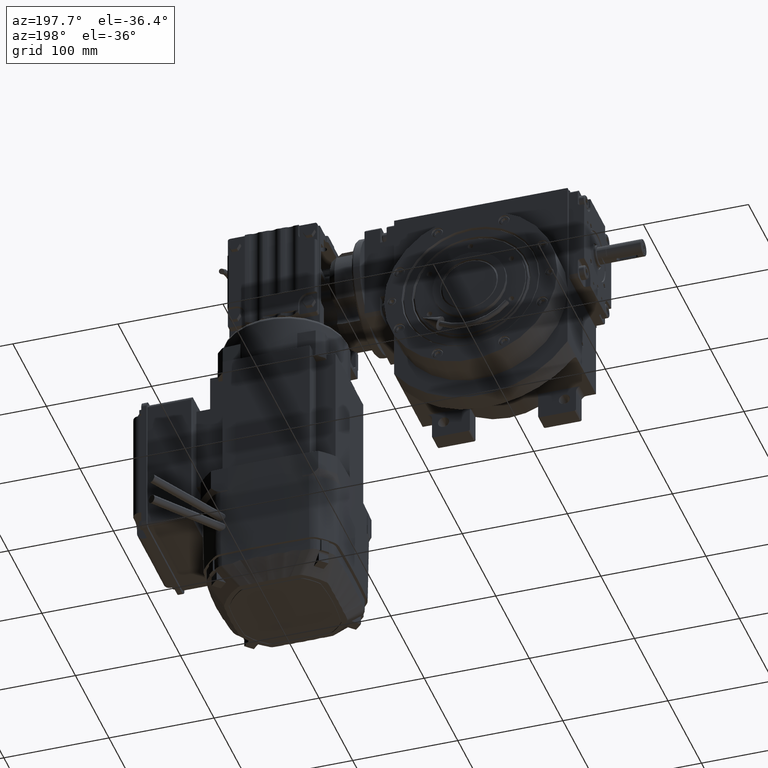
[diagram: clean part render]
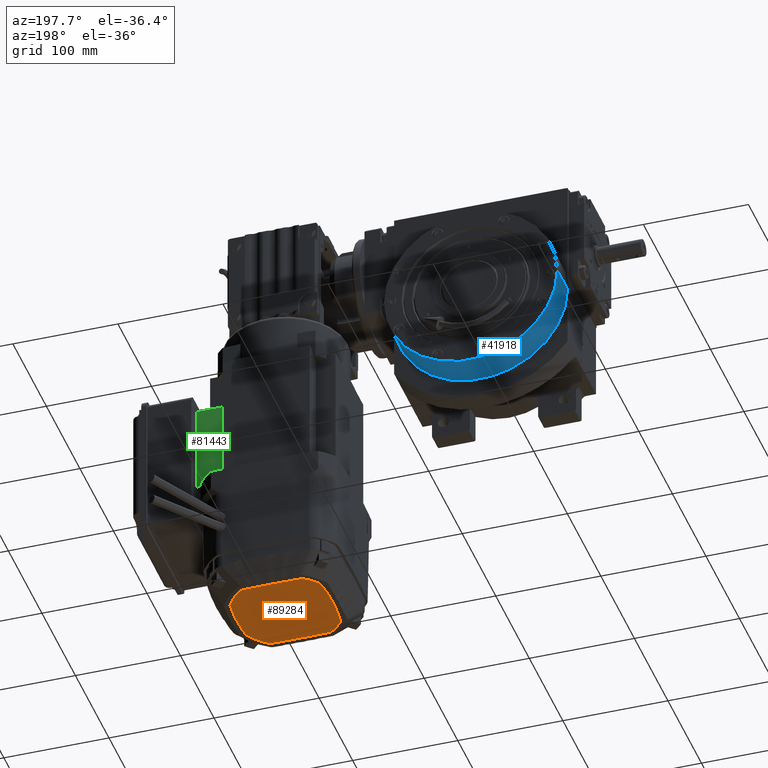
[diagram: same view with three faces highlighted in distinct colors, each labeled with its STEP entity id]
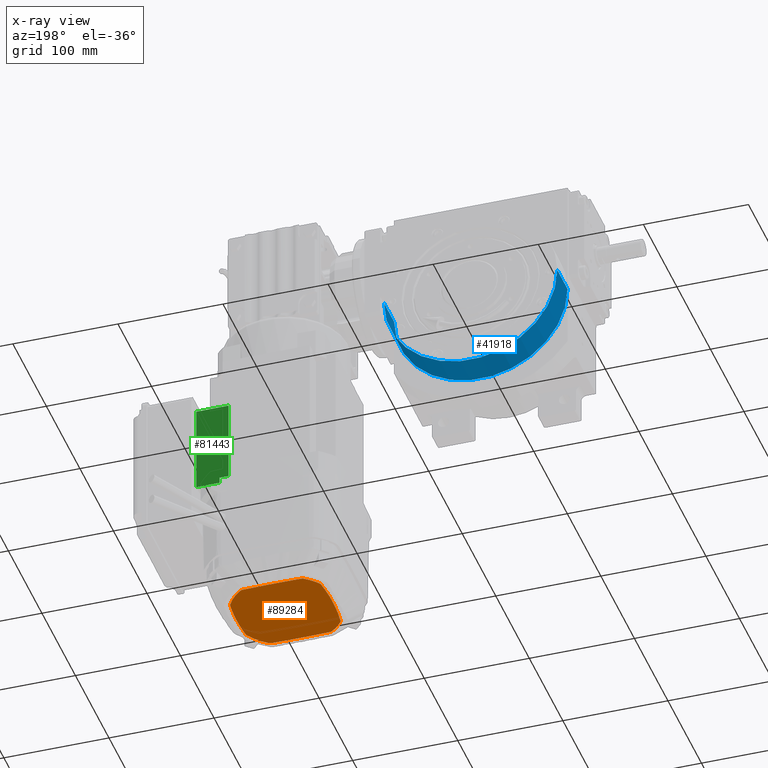
[diagram: x-ray of the same camera — body ghosted, the three highlighted faces saturated]
A machine part, auxiliary view with three faces highlighted in distinct colors.
The next image is the same camera in x-ray (body ghosted, the three faces saturated) — at least one of them is partly hidden behind the body in this view.
Their STEP definitions:

[orange] entity #89284 — the highlighted planar face has unit normal (0, 0, -1).
#125 = VERTEX_POINT ( 'NONE', #70533 ) ;
#200 = ORIENTED_EDGE ( 'NONE', *, *, #59385, .F. ) ;
#331 = DIRECTION ( 'NONE',  ( -1.000000000000000000, 1.110199554968789938E-42, 4.218847493575485202E-15 ) ) ;
#469 = AXIS2_PLACEMENT_3D ( 'NONE', #94414, #65297, #24519 ) ;
#476 = DIRECTION ( 'NONE',  ( 0.000000000000000000, 1.000000000000000000, 1.011922027653558986E-14 ) ) ;
#2613 = CARTESIAN_POINT ( 'NONE',  ( 350.8999999999999773, -30.34940460747401048, 64.97801376877232826 ) ) ;
#4866 = CIRCLE ( 'NONE', #60321, 51.79999999999769500 ) ;
#5056 = AXIS2_PLACEMENT_3D ( 'NONE', #39104, #331, #85072 ) ;
#5326 = AXIS2_PLACEMENT_3D ( 'NONE', #85184, #54518, #69833 ) ;
#6404 = VERTEX_POINT ( 'NONE', #35077 ) ;
#6699 = CARTESIAN_POINT ( 'NONE',  ( 350.8999999999999773, 165.5000000000000000, 23.00000000000035172 ) ) ;
#6872 = CIRCLE ( 'NONE', #75328, 51.79999999999800053 ) ;
#6955 = CARTESIAN_POINT ( 'NONE',  ( 350.9000000000041837, 1.179611963664228824E-11, -980.9480531501500309 ) ) ;
#7470 = VERTEX_POINT ( 'NONE', #63064 ) ;
#8265 = CIRCLE ( 'NONE', #13149, 4.799999999997698552 ) ;
#8286 = AXIS2_PLACEMENT_3D ( 'NONE', #79043, #70360, #476 ) ;
#8869 = DIRECTION ( 'NONE',  ( 0.000000000000000000, 1.000000000000000000, 1.011922027653622726E-14 ) ) ;
#10244 = CIRCLE ( 'NONE', #68910, 209.7999999999999829 ) ;
#10922 = CARTESIAN_POINT ( 'NONE',  ( 350.8999999999999773, 1.249000902703301108E-12, 22.99999999999855049 ) ) ;
#12162 = AXIS2_PLACEMENT_3D ( 'NONE', #86624, #80969, #71265 ) ;
#12576 = VERTEX_POINT ( 'NONE', #95806 ) ;
#13149 = AXIS2_PLACEMENT_3D ( 'NONE', #46657, #40497, #8869 ) ;
#13563 = VERTEX_POINT ( 'NONE', #33595 ) ;
#13666 = DIRECTION ( 'NONE',  ( 0.000000000000000000, 1.000000000000000000, 1.011922027653576657E-14 ) ) ;
#14004 = DIRECTION ( 'NONE',  ( 0.000000000000000000, 1.000000000000000000, 1.044852750009196605E-14 ) ) ;
#14486 = DIRECTION ( 'NONE',  ( 0.000000000000000000, 1.000000000000000000, 1.046787378735289790E-14 ) ) ;
#15163 = ORIENTED_EDGE ( 'NONE', *, *, #73479, .F. ) ;
#16074 = DIRECTION ( 'NONE',  ( -1.000000000000000000, 1.139884579173429879E-42, 4.218847493575485202E-15 ) ) ;
#16660 = PLANE ( 'NONE',  #58377 ) ;
#16781 = ORIENTED_EDGE ( 'NONE', *, *, #27870, .F. ) ;
#16876 = CARTESIAN_POINT ( 'NONE',  ( 350.8999999999957708, -9.214851104388799286E-12, 1026.948053150149917 ) ) ;
#17106 = CIRCLE ( 'NONE', #82330, 51.79999999999999716 ) ;
#17628 = DIRECTION ( 'NONE',  ( -1.000000000000000000, 1.149172564369689967E-42, 4.218847493575485202E-15 ) ) ;
#18101 = AXIS2_PLACEMENT_3D ( 'NONE', #41364, #72477, #18388 ) ;
#18108 = DIRECTION ( 'NONE',  ( 0.000000000000000000, 1.000000000000000000, 1.011922027653137735E-14 ) ) ;
#18382 = ORIENTED_EDGE ( 'NONE', *, *, #28899, .F. ) ;
#18388 = DIRECTION ( 'NONE',  ( 0.000000000000000000, 1.000000000000000000, 1.046703450730366946E-14 ) ) ;
#19592 = DIRECTION ( 'NONE',  ( 0.000000000000000000, 1.000000000000000000, 1.044852750009271074E-14 ) ) ;
#19949 = VERTEX_POINT ( 'NONE', #88288 ) ;
#20832 = ORIENTED_EDGE ( 'NONE', *, *, #47952, .F. ) ;
#21373 = ORIENTED_EDGE ( 'NONE', *, *, #95322, .F. ) ;
#22155 = CIRCLE ( 'NONE', #74212, 1047.200000000000045 ) ;
#22398 = CIRCLE ( 'NONE', #46844, 1047.199999999999818 ) ;
#22627 = EDGE_CURVE ( 'NONE', #63536, #40346, #8265, .T. ) ;
#22831 = DIRECTION ( 'NONE',  ( -1.000000000000000000, 1.110199554968405843E-42, 4.218847493575485202E-15 ) ) ;
#22918 = DIRECTION ( 'NONE',  ( 0.000000000000000000, 1.000000000000000000, 1.044852750009242990E-14 ) ) ;
#23233 = CARTESIAN_POINT ( 'NONE',  ( 350.8999999999999773, -47.29999999999878924, 22.99999999999814548 ) ) ;
#24446 = CIRCLE ( 'NONE', #71689, 4.799999999999998934 ) ;
#24519 = DIRECTION ( 'NONE',  ( 0.000000000000000000, 1.000000000000000000, 1.011922027653945213E-14 ) ) ;
#25522 = AXIS2_PLACEMENT_3D ( 'NONE', #30486, #22831, #13666 ) ;
#27836 = ORIENTED_EDGE ( 'NONE', *, *, #76247, .F. ) ;
#27870 = EDGE_CURVE ( 'NONE', #43191, #71509, #24446, .T. ) ;
#28899 = EDGE_CURVE ( 'NONE', #55949, #70768, #29502, .T. ) ;
#28990 = CARTESIAN_POINT ( 'NONE',  ( 350.8999999999999773, 41.37390563733369930, -8.167931152275770046 ) ) ;
#29502 = CIRCLE ( 'NONE', #5056, 4.799999999996258815 ) ;
#29519 = EDGE_CURVE ( 'NONE', #40265, #95642, #47455, .T. ) ;
#30486 = CARTESIAN_POINT ( 'NONE',  ( 350.8999999999999773, 37.54003021148199792, -5.279783091834533870 ) ) ;
#31015 = VERTEX_POINT ( 'NONE', #28990 ) ;
#31027 = VERTEX_POINT ( 'NONE', #84098 ) ;
#31494 = DIRECTION ( 'NONE',  ( -4.218847493575594854E-15, -1.097139774554090094E-28, 1.000000000000000000 ) ) ;
#31526 = DIRECTION ( 'NONE',  ( 0.000000000000000000, 1.000000000000000000, 1.044852750009236837E-14 ) ) ;
#32186 = DIRECTION ( 'NONE',  ( 0.000000000000000000, 1.000000000000000000, 1.038978766360440565E-14 ) ) ;
#33280 = AXIS2_PLACEMENT_3D ( 'NONE', #10922, #65515, #19592 ) ;
#33595 = CARTESIAN_POINT ( 'NONE',  ( 350.8999999999999773, 44.29999999999928662, 22.99999999999904787 ) ) ;
#34473 = ORIENTED_EDGE ( 'NONE', *, *, #22627, .F. ) ;
#34753 = ORIENTED_EDGE ( 'NONE', *, *, #81001, .F. ) ;
#35077 = CARTESIAN_POINT ( 'NONE',  ( 350.8999999999999773, 42.29413823594391175, -5.941943866667362961 ) ) ;
#36260 = EDGE_CURVE ( 'NONE', #7470, #13563, #82228, .T. ) ;
#39104 = CARTESIAN_POINT ( 'NONE',  ( 350.8999999999999773, -27.53710456662889072, 61.08815921105082225 ) ) ;
#39686 = ORIENTED_EDGE ( 'NONE', *, *, #43488, .F. ) ;
#40098 = CARTESIAN_POINT ( 'NONE',  ( 350.8999999999999773, -165.5000000000000284, 22.99999999999684874 ) ) ;
#40265 = VERTEX_POINT ( 'NONE', #23233 ) ;
#40346 = VERTEX_POINT ( 'NONE', #56708 ) ;
#40497 = DIRECTION ( 'NONE',  ( -1.000000000000000000, 1.110199554968449812E-42, 4.218847493575485202E-15 ) ) ;
#41240 = CIRCLE ( 'NONE', #5326, 4.799999999997847766 ) ;
#41364 = CARTESIAN_POINT ( 'NONE',  ( 350.8999999999999773, 165.5000000000000000, 23.00000000000035172 ) ) ;
#41435 = CIRCLE ( 'NONE', #33280, 51.79999999999630234 ) ;
#41562 = DIRECTION ( 'NONE',  ( -1.000000000000000000, 1.149172564369689967E-42, 4.218847493575485202E-15 ) ) ;
#41809 = EDGE_CURVE ( 'NONE', #71509, #40265, #63216, .T. ) ;
#42069 = CARTESIAN_POINT ( 'NONE',  ( 350.8999999999999773, 1.332267629550187849E-12, 22.99999999999855049 ) ) ;
#43191 = VERTEX_POINT ( 'NONE', #63792 ) ;
#43226 = EDGE_CURVE ( 'NONE', #98139, #31027, #81999, .T. ) ;
#43488 = EDGE_CURVE ( 'NONE', #91134, #19949, #41240, .T. ) ;
#44818 = ORIENTED_EDGE ( 'NONE', *, *, #97084, .F. ) ;
#46657 = CARTESIAN_POINT ( 'NONE',  ( 350.8999999999999773, -27.53710456663138828, -15.08815921105485103 ) ) ;
#46844 = AXIS2_PLACEMENT_3D ( 'NONE', #6955, #16074, #85533 ) ;
#46973 = DIRECTION ( 'NONE',  ( 0.000000000000000000, 1.000000000000000000, 1.046703450730366946E-14 ) ) ;
#47455 = CIRCLE ( 'NONE', #18101, 212.7999999999999545 ) ;
#47952 = EDGE_CURVE ( 'NONE', #70768, #98139, #22398, .T. ) ;
#53121 = DIRECTION ( 'NONE',  ( -1.000000000000000000, 1.149172564369689967E-42, 4.218847493575485202E-15 ) ) ;
#54518 = DIRECTION ( 'NONE',  ( -1.000000000000000000, 1.110199554968417791E-42, 4.218847493575485202E-15 ) ) ;
#55498 = CARTESIAN_POINT ( 'NONE',  ( 350.8999999999999773, 1.554312234475219157E-12, 22.99999999999855049 ) ) ;
#55949 = VERTEX_POINT ( 'NONE', #2613 ) ;
#56590 = CARTESIAN_POINT ( 'NONE',  ( 350.8999999999999773, -27.66390627606848795, 65.88648405691581900 ) ) ;
#56708 = CARTESIAN_POINT ( 'NONE',  ( 350.8999999999999773, -30.34940460747750990, -18.97801376877745128 ) ) ;
#57370 = CARTESIAN_POINT ( 'NONE',  ( 350.8999999999999773, -41.28323262839739272, 0.5345887251180829747 ) ) ;
#57595 = CARTESIAN_POINT ( 'NONE',  ( 350.8999999999999773, -46.05515338135901260, 45.98384384275992431 ) ) ;
#58377 = AXIS2_PLACEMENT_3D ( 'NONE', #64104, #78941, #31494 ) ;
#59385 = EDGE_CURVE ( 'NONE', #125, #7470, #78360, .T. ) ;
#60321 = AXIS2_PLACEMENT_3D ( 'NONE', #55498, #62188, #22918 ) ;
#60437 = CARTESIAN_POINT ( 'NONE',  ( 350.8999999999999773, 1.026956297778269800E-12, 22.99999999999855049 ) ) ;
#60598 = ORIENTED_EDGE ( 'NONE', *, *, #29519, .F. ) ;
#61572 = AXIS2_PLACEMENT_3D ( 'NONE', #6699, #53121, #46973 ) ;
#62188 = DIRECTION ( 'NONE',  ( -1.000000000000000000, 1.149172564369689967E-42, 4.218847493575485202E-15 ) ) ;
#63064 = CARTESIAN_POINT ( 'NONE',  ( 350.8999999999999773, 42.29413823594330069, 51.94194386666502083 ) ) ;
#63216 = CIRCLE ( 'NONE', #61572, 212.7999999999999545 ) ;
#63536 = VERTEX_POINT ( 'NONE', #79002 ) ;
#63792 = CARTESIAN_POINT ( 'NONE',  ( 350.8999999999999773, -45.49939255640400404, -1.759751149763303157 ) ) ;
#63807 = DIRECTION ( 'NONE',  ( -1.000000000000000000, 1.139884579173419843E-42, 4.218847493575485202E-15 ) ) ;
#64104 = CARTESIAN_POINT ( 'NONE',  ( 350.8999999999999773, 13.91003405801069448, 44.96613194226401333 ) ) ;
#65297 = DIRECTION ( 'NONE',  ( -1.000000000000000000, 1.110199554968811922E-42, 4.218847493575485202E-15 ) ) ;
#65515 = DIRECTION ( 'NONE',  ( -1.000000000000000000, 1.149172564369689967E-42, 4.218847493575485202E-15 ) ) ;
#67378 = EDGE_CURVE ( 'NONE', #6404, #31015, #74401, .T. ) ;
#68910 = AXIS2_PLACEMENT_3D ( 'NONE', #77742, #84402, #14486 ) ;
#69833 = DIRECTION ( 'NONE',  ( 0.000000000000000000, 1.000000000000000000, 1.011922027653591172E-14 ) ) ;
#70360 = DIRECTION ( 'NONE',  ( -1.000000000000000000, 1.110199554968383858E-42, 4.218847493575485202E-15 ) ) ;
#70533 = CARTESIAN_POINT ( 'NONE',  ( 350.8999999999999773, 41.37390563733308824, 54.16793115227351763 ) ) ;
#70553 = CARTESIAN_POINT ( 'NONE',  ( 350.8999999999999773, -46.05515338136040526, 0.01615615723619724664 ) ) ;
#70768 = VERTEX_POINT ( 'NONE', #56590 ) ;
#71186 = DIRECTION ( 'NONE',  ( 0.000000000000000000, 1.000000000000000000, 1.046787378735289790E-14 ) ) ;
#71265 = DIRECTION ( 'NONE',  ( 0.000000000000000000, 1.000000000000000000, 1.011922027653523961E-14 ) ) ;
#71381 = ORIENTED_EDGE ( 'NONE', *, *, #36260, .F. ) ;
#71509 = VERTEX_POINT ( 'NONE', #70553 ) ;
#71556 = ORIENTED_EDGE ( 'NONE', *, *, #86391, .F. ) ;
#71666 = DIRECTION ( 'NONE',  ( -1.000000000000000000, 1.110199554967933810E-42, 4.218847493575485202E-15 ) ) ;
#71689 = AXIS2_PLACEMENT_3D ( 'NONE', #57370, #71666, #18108 ) ;
#72082 = ORIENTED_EDGE ( 'NONE', *, *, #43226, .F. ) ;
#72477 = DIRECTION ( 'NONE',  ( -1.000000000000000000, 1.149172564369689967E-42, 4.218847493575485202E-15 ) ) ;
#73405 = ORIENTED_EDGE ( 'NONE', *, *, #85691, .F. ) ;
#73479 = EDGE_CURVE ( 'NONE', #31015, #91134, #4866, .T. ) ;
#74212 = AXIS2_PLACEMENT_3D ( 'NONE', #16876, #63807, #32186 ) ;
#74401 = CIRCLE ( 'NONE', #25522, 4.799999999997917044 ) ;
#75328 = AXIS2_PLACEMENT_3D ( 'NONE', #42069, #41562, #31526 ) ;
#76247 = EDGE_CURVE ( 'NONE', #13563, #6404, #10244, .T. ) ;
#77742 = CARTESIAN_POINT ( 'NONE',  ( 350.8999999999999773, -165.5000000000000284, 22.99999999999684874 ) ) ;
#78360 = CIRCLE ( 'NONE', #8286, 4.799999999998000533 ) ;
#78941 = DIRECTION ( 'NONE',  ( 1.000000000000000000, -9.257127272781515139E-43, 4.218847493575594854E-15 ) ) ;
#79002 = CARTESIAN_POINT ( 'NONE',  ( 350.8999999999999773, -27.66390627607090380, -19.88648405692154952 ) ) ;
#79043 = CARTESIAN_POINT ( 'NONE',  ( 350.8999999999999773, 37.54003021148138686, 51.27978309183212247 ) ) ;
#80969 = DIRECTION ( 'NONE',  ( -1.000000000000000000, 1.110199554968339889E-42, 4.218847493575485202E-15 ) ) ;
#81001 = EDGE_CURVE ( 'NONE', #31027, #125, #6872, .T. ) ;
#81860 = CARTESIAN_POINT ( 'NONE',  ( 350.8999999999999773, 30.34940460747700897, -18.97801376877714929 ) ) ;
#81999 = CIRCLE ( 'NONE', #469, 4.799999999996168221 ) ;
#82228 = CIRCLE ( 'NONE', #95228, 209.7999999999999829 ) ;
#82330 = AXIS2_PLACEMENT_3D ( 'NONE', #60437, #83924, #14004 ) ;
#82643 = CARTESIAN_POINT ( 'NONE',  ( 350.8999999999999773, 27.66390627607320951, 65.88648405691651533 ) ) ;
#83924 = DIRECTION ( 'NONE',  ( -1.000000000000000000, 1.149172564369689967E-42, 4.218847493575485202E-15 ) ) ;
#84098 = CARTESIAN_POINT ( 'NONE',  ( 350.8999999999999773, 30.34940460747900914, 64.97801376877272617 ) ) ;
#84402 = DIRECTION ( 'NONE',  ( -1.000000000000000000, 1.149172564369689967E-42, 4.218847493575485202E-15 ) ) ;
#85072 = DIRECTION ( 'NONE',  ( 0.000000000000000000, 1.000000000000000000, 1.011922027653926122E-14 ) ) ;
#85184 = CARTESIAN_POINT ( 'NONE',  ( 350.8999999999999773, 27.53710456663099748, -15.08815921105435187 ) ) ;
#85533 = DIRECTION ( 'NONE',  ( 0.000000000000000000, 1.000000000000000000, 1.038978766360440722E-14 ) ) ;
#85613 = FACE_OUTER_BOUND ( 'NONE', #90236, .T. ) ;
#85691 = EDGE_CURVE ( 'NONE', #40346, #43191, #17106, .T. ) ;
#86391 = EDGE_CURVE ( 'NONE', #19949, #63536, #22155, .T. ) ;
#86624 = CARTESIAN_POINT ( 'NONE',  ( 350.8999999999999773, -41.28323262839769825, 45.46541127487832057 ) ) ;
#88288 = CARTESIAN_POINT ( 'NONE',  ( 350.8999999999999773, 27.66390627607059827, -19.88648405692094912 ) ) ;
#89284 = ADVANCED_FACE ( 'NONE', ( #85613 ), #16660, .T. ) ;
#90236 = EDGE_LOOP ( 'NONE', ( #21373, #44818, #60598, #97133, #16781, #73405, #34473, #71556, #39686, #15163, #97852, #27836, #71381, #200, #34753, #72082, #20832, #18382 ) ) ;
#91134 = VERTEX_POINT ( 'NONE', #81860 ) ;
#93651 = CIRCLE ( 'NONE', #12162, 4.799999999998166622 ) ;
#94414 = CARTESIAN_POINT ( 'NONE',  ( 350.8999999999999773, 27.53710456663380057, 61.08815921105141200 ) ) ;
#95228 = AXIS2_PLACEMENT_3D ( 'NONE', #40098, #17628, #71186 ) ;
#95322 = EDGE_CURVE ( 'NONE', #12576, #55949, #41435, .T. ) ;
#95642 = VERTEX_POINT ( 'NONE', #57595 ) ;
#95806 = CARTESIAN_POINT ( 'NONE',  ( 350.8999999999999773, -45.49939255640109081, 47.75975114975781111 ) ) ;
#97084 = EDGE_CURVE ( 'NONE', #95642, #12576, #93651, .T. ) ;
#97133 = ORIENTED_EDGE ( 'NONE', *, *, #41809, .F. ) ;
#97852 = ORIENTED_EDGE ( 'NONE', *, *, #67378, .F. ) ;
#98139 = VERTEX_POINT ( 'NONE', #82643 ) ;

[blue] entity #41918 — the highlighted cylindrical surface (partial cylindrical patch) has radius 82.5 mm, axis along (0, 1, 0).
#2518 = AXIS2_PLACEMENT_3D ( 'NONE', #91801, #43841, #83660 ) ;
#3038 = CARTESIAN_POINT ( 'NONE',  ( -82.50000000000001421, 1.010322486831990379E-14, 0.000000000000000000 ) ) ;
#3661 = EDGE_CURVE ( 'NONE', #90365, #42502, #88777, .T. ) ;
#6868 = CARTESIAN_POINT ( 'NONE',  ( 0.000000000000000000, 0.000000000000000000, 0.000000000000000000 ) ) ;
#8360 = DIRECTION ( 'NONE',  ( 1.000000000000000000, 0.000000000000000000, 0.000000000000000000 ) ) ;
#13979 = CIRCLE ( 'NONE', #2518, 82.50000000000000000 ) ;
#18944 = ORIENTED_EDGE ( 'NONE', *, *, #42153, .F. ) ;
#22027 = DIRECTION ( 'NONE',  ( 0.000000000000000000, 0.000000000000000000, 1.000000000000000000 ) ) ;
#24003 = FACE_OUTER_BOUND ( 'NONE', #82724, .T. ) ;
#31170 = DIRECTION ( 'NONE',  ( 1.000000000000000000, 0.000000000000000000, 0.000000000000000000 ) ) ;
#33262 = CARTESIAN_POINT ( 'NONE',  ( -82.50000000000001421, 2.020633851199993078E-14, 0.000000000000000000 ) ) ;
#34160 = ORIENTED_EDGE ( 'NONE', *, *, #98152, .F. ) ;
#41869 = CARTESIAN_POINT ( 'NONE',  ( 82.49999999999998579, -1.010300241903009221E-14, 0.000000000000000000 ) ) ;
#41918 = ADVANCED_FACE ( 'NONE', ( #24003 ), #91929, .T. ) ;
#42153 = EDGE_CURVE ( 'NONE', #51352, #74143, #59146, .T. ) ;
#42502 = VERTEX_POINT ( 'NONE', #86645 ) ;
#42848 = CARTESIAN_POINT ( 'NONE',  ( 82.49999999999998579, -1.010322486831990379E-14, 0.000000000000000000 ) ) ;
#43841 = DIRECTION ( 'NONE',  ( 0.000000000000000000, 0.000000000000000000, 1.000000000000000000 ) ) ;
#51352 = VERTEX_POINT ( 'NONE', #41869 ) ;
#53667 = CARTESIAN_POINT ( 'NONE',  ( 82.49999999999998579, -1.010300241903009221E-14, 30.49999999999999289 ) ) ;
#55303 = VECTOR ( 'NONE', #81111, 1000.000000000000000 ) ;
#56348 = CIRCLE ( 'NONE', #69411, 82.50000000000000000 ) ;
#58125 = DIRECTION ( 'NONE',  ( 0.000000000000000000, 0.000000000000000000, 1.000000000000000000 ) ) ;
#59146 = LINE ( 'NONE', #42848, #55303 ) ;
#60796 = CARTESIAN_POINT ( 'NONE',  ( 0.000000000000000000, 0.000000000000000000, 0.000000000000000000 ) ) ;
#64825 = AXIS2_PLACEMENT_3D ( 'NONE', #60796, #22027, #31170 ) ;
#69411 = AXIS2_PLACEMENT_3D ( 'NONE', #6868, #84939, #8360 ) ;
#74143 = VERTEX_POINT ( 'NONE', #53667 ) ;
#76185 = ORIENTED_EDGE ( 'NONE', *, *, #87069, .T. ) ;
#79346 = ORIENTED_EDGE ( 'NONE', *, *, #3661, .T. ) ;
#81111 = DIRECTION ( 'NONE',  ( 0.000000000000000000, 0.000000000000000000, 1.000000000000000000 ) ) ;
#82724 = EDGE_LOOP ( 'NONE', ( #79346, #34160, #18944, #76185 ) ) ;
#83660 = DIRECTION ( 'NONE',  ( 1.000000000000000000, 0.000000000000000000, 0.000000000000000000 ) ) ;
#84939 = DIRECTION ( 'NONE',  ( 0.000000000000000000, 0.000000000000000000, 1.000000000000000000 ) ) ;
#86645 = CARTESIAN_POINT ( 'NONE',  ( -82.50000000000001421, 2.020633851199993078E-14, 30.49999999999999289 ) ) ;
#87069 = EDGE_CURVE ( 'NONE', #51352, #90365, #56348, .T. ) ;
#88777 = LINE ( 'NONE', #3038, #95140 ) ;
#90365 = VERTEX_POINT ( 'NONE', #33262 ) ;
#91801 = CARTESIAN_POINT ( 'NONE',  ( 0.000000000000000000, 0.000000000000000000, 30.49999999999999289 ) ) ;
#91929 = CYLINDRICAL_SURFACE ( 'NONE', #64825, 82.50000000000000000 ) ;
#95140 = VECTOR ( 'NONE', #58125, 1000.000000000000000 ) ;
#98152 = EDGE_CURVE ( 'NONE', #74143, #42502, #13979, .T. ) ;

[green] entity #81443 — the highlighted planar face has unit normal (-0, 1, -0).
#5796 = VERTEX_POINT ( 'NONE', #57909 ) ;
#6670 = EDGE_CURVE ( 'NONE', #5796, #59479, #90688, .T. ) ;
#7551 = CARTESIAN_POINT ( 'NONE',  ( 225.2000000000000171, -72.00000000000001421, 65.49999999999894840 ) ) ;
#8232 = DIRECTION ( 'NONE',  ( -6.123233995736769734E-17, -1.000000000000000000, 2.583299039549094182E-31 ) ) ;
#9798 = PLANE ( 'NONE',  #47710 ) ;
#13124 = DIRECTION ( 'NONE',  ( 2.035031775951792212E-47, 1.000000000000000000, 6.308816818961193505E-48 ) ) ;
#13998 = LINE ( 'NONE', #91041, #94377 ) ;
#14892 = LINE ( 'NONE', #76135, #62836 ) ;
#17498 = LINE ( 'NONE', #73073, #56402 ) ;
#19475 = EDGE_CURVE ( 'NONE', #87478, #59479, #17498, .T. ) ;
#19489 = EDGE_LOOP ( 'NONE', ( #28255, #64344, #31726, #19500, #47947, #97758 ) ) ;
#19500 = ORIENTED_EDGE ( 'NONE', *, *, #6670, .T. ) ;
#21907 = LINE ( 'NONE', #29043, #43335 ) ;
#22079 = CARTESIAN_POINT ( 'NONE',  ( 219.5000000000000000, -50.01792592856241271, 65.49999999999894840 ) ) ;
#24748 = EDGE_CURVE ( 'NONE', #30972, #5796, #77459, .T. ) ;
#26127 = CARTESIAN_POINT ( 'NONE',  ( 225.2000000000000171, -72.00000000000001421, 65.49999999999894840 ) ) ;
#28255 = ORIENTED_EDGE ( 'NONE', *, *, #98115, .F. ) ;
#29043 = CARTESIAN_POINT ( 'NONE',  ( 225.2000000000000171, -41.49999999999950973, 65.49999999999894840 ) ) ;
#29634 = VECTOR ( 'NONE', #31504, 1000.000000000000000 ) ;
#30972 = VERTEX_POINT ( 'NONE', #59326 ) ;
#31504 = DIRECTION ( 'NONE',  ( 1.000000000000000000, 2.035031775951791969E-47, -4.218847493575594854E-15 ) ) ;
#31726 = ORIENTED_EDGE ( 'NONE', *, *, #24748, .T. ) ;
#36698 = DIRECTION ( 'NONE',  ( 1.000000000000000000, -6.938447119570877288E-47, -4.218847493575594854E-15 ) ) ;
#43335 = VECTOR ( 'NONE', #36698, 1000.000000000000000 ) ;
#44610 = DIRECTION ( 'NONE',  ( 2.035031775951792212E-47, 1.000000000000000000, 6.308816818961193505E-48 ) ) ;
#47710 = AXIS2_PLACEMENT_3D ( 'NONE', #26127, #96532, #49599 ) ;
#47947 = ORIENTED_EDGE ( 'NONE', *, *, #19475, .F. ) ;
#49599 = DIRECTION ( 'NONE',  ( 1.000000000000000000, 2.035031775951791969E-47, -4.218847493575594854E-15 ) ) ;
#55729 = FACE_OUTER_BOUND ( 'NONE', #19489, .T. ) ;
#56240 = VERTEX_POINT ( 'NONE', #94231 ) ;
#56402 = VECTOR ( 'NONE', #63920, 1000.000000000000000 ) ;
#57909 = CARTESIAN_POINT ( 'NONE',  ( 225.2000000000000171, -72.00000000000001421, 65.49999999999894840 ) ) ;
#59326 = CARTESIAN_POINT ( 'NONE',  ( 140.1999999999999886, -72.00000000000001421, 65.49999999999947420 ) ) ;
#59479 = VERTEX_POINT ( 'NONE', #97355 ) ;
#62836 = VECTOR ( 'NONE', #8232, 1000.000000000000000 ) ;
#63920 = DIRECTION ( 'NONE',  ( 1.000000000000000000, -6.123233995736759873E-17, -4.218847493575594854E-15 ) ) ;
#64344 = ORIENTED_EDGE ( 'NONE', *, *, #72570, .F. ) ;
#66287 = VERTEX_POINT ( 'NONE', #72608 ) ;
#72570 = EDGE_CURVE ( 'NONE', #30972, #66287, #13998, .T. ) ;
#72608 = CARTESIAN_POINT ( 'NONE',  ( 140.1999999999999886, -41.50000000000000711, 65.49999999999947420 ) ) ;
#73073 = CARTESIAN_POINT ( 'NONE',  ( 219.5000000000000000, -50.01792592856241271, 65.49999999999894840 ) ) ;
#76135 = CARTESIAN_POINT ( 'NONE',  ( 219.5000000000000000, 0.000000000000000000, 65.49999999999894840 ) ) ;
#77459 = LINE ( 'NONE', #7551, #29634 ) ;
#81443 = ADVANCED_FACE ( 'NONE', ( #55729 ), #9798, .T. ) ;
#83059 = CARTESIAN_POINT ( 'NONE',  ( 225.2000000000000171, -72.00000000000001421, 65.49999999999894840 ) ) ;
#86171 = EDGE_CURVE ( 'NONE', #56240, #87478, #14892, .T. ) ;
#87478 = VERTEX_POINT ( 'NONE', #22079 ) ;
#90688 = LINE ( 'NONE', #83059, #93014 ) ;
#91041 = CARTESIAN_POINT ( 'NONE',  ( 140.1999999999999886, -72.00000000000001421, 65.49999999999947420 ) ) ;
#93014 = VECTOR ( 'NONE', #13124, 1000.000000000000000 ) ;
#94231 = CARTESIAN_POINT ( 'NONE',  ( 219.5000000000000000, -41.49999999999950973, 65.49999999999894840 ) ) ;
#94377 = VECTOR ( 'NONE', #44610, 1000.000000000000000 ) ;
#96532 = DIRECTION ( 'NONE',  ( 4.218847493575594854E-15, 6.308816818961366097E-48, 1.000000000000000000 ) ) ;
#97355 = CARTESIAN_POINT ( 'NONE',  ( 225.2000000000000171, -50.01792592856241271, 65.49999999999894840 ) ) ;
#97758 = ORIENTED_EDGE ( 'NONE', *, *, #86171, .F. ) ;
#98115 = EDGE_CURVE ( 'NONE', #66287, #56240, #21907, .T. ) ;